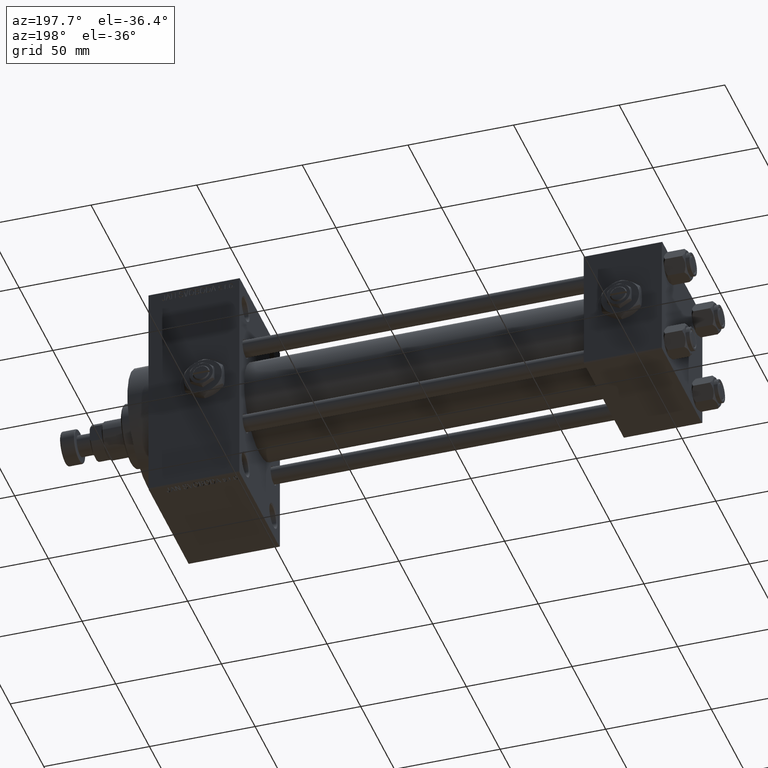
[diagram: clean part render]
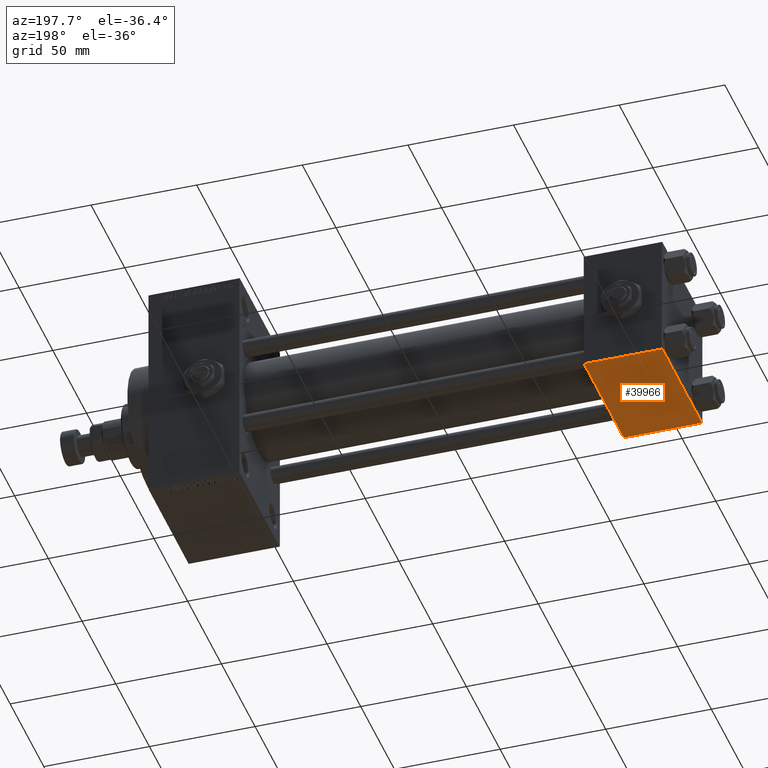
[diagram: same view with one face highlighted and labeled with its STEP entity id]
A machine part, auxiliary view. The second image highlights one B-rep face of the part: STEP entity #39966.
In plain terms, the highlighted planar face has unit normal (0, 0, -1).
Its self-contained STEP definition (entity closure, byte-faithful):
#2209 = CARTESIAN_POINT ( 'NONE',  ( 37.00000000000000000, 29.49999999999997868, -30.00000000000000000 ) ) ;
#9732 = EDGE_CURVE ( 'NONE', #19642, #27849, #33759, .T. ) ;
#11508 = DIRECTION ( 'NONE',  ( 1.000000000000000000, 0.000000000000000000, 0.000000000000000000 ) ) ;
#11756 = CARTESIAN_POINT ( 'NONE',  ( 37.00000000000000000, 29.49999999999997868, -30.00000000000000000 ) ) ;
#12373 = LINE ( 'NONE', #15893, #31885 ) ;
#13869 = DIRECTION ( 'NONE',  ( -1.000000000000000000, 0.000000000000000000, 0.000000000000000000 ) ) ;
#13909 = AXIS2_PLACEMENT_3D ( 'NONE', #14799, #48774, #22334 ) ;
#14018 = EDGE_CURVE ( 'NONE', #19642, #17336, #31128, .T. ) ;
#14799 = CARTESIAN_POINT ( 'NONE',  ( 37.00000000000000000, 29.99999999999999289, -30.00000000000000000 ) ) ;
#14939 = ORIENTED_EDGE ( 'NONE', *, *, #22986, .T. ) ;
#15893 = CARTESIAN_POINT ( 'NONE',  ( 37.00000000000000000, 29.99999999999999289, -30.00000000000000000 ) ) ;
#17336 = VERTEX_POINT ( 'NONE', #2209 ) ;
#18892 = ORIENTED_EDGE ( 'NONE', *, *, #38568, .T. ) ;
#19642 = VERTEX_POINT ( 'NONE', #22687 ) ;
#21877 = VECTOR ( 'NONE', #30739, 1000.000000000000000 ) ;
#22090 = FACE_OUTER_BOUND ( 'NONE', #33065, .T. ) ;
#22162 = VERTEX_POINT ( 'NONE', #32658 ) ;
#22334 = DIRECTION ( 'NONE',  ( 0.000000000000000000, 1.000000000000000000, 1.156482317317871725E-16 ) ) ;
#22687 = CARTESIAN_POINT ( 'NONE',  ( 0.000000000000000000, 29.49999999999997868, -30.00000000000000000 ) ) ;
#22986 = EDGE_CURVE ( 'NONE', #17336, #22162, #12373, .T. ) ;
#25599 = CARTESIAN_POINT ( 'NONE',  ( 0.000000000000000000, -29.50000000000000000, -30.00000000000000711 ) ) ;
#27849 = VERTEX_POINT ( 'NONE', #25599 ) ;
#30739 = DIRECTION ( 'NONE',  ( 0.000000000000000000, -1.000000000000000000, -1.156482317317871725E-16 ) ) ;
#31128 = LINE ( 'NONE', #11756, #47753 ) ;
#31885 = VECTOR ( 'NONE', #34520, 1000.000000000000000 ) ;
#32492 = CARTESIAN_POINT ( 'NONE',  ( 0.000000000000000000, -29.50000000000001066, -30.00000000000000711 ) ) ;
#32658 = CARTESIAN_POINT ( 'NONE',  ( 37.00000000000000000, -29.50000000000000000, -30.00000000000000711 ) ) ;
#33065 = EDGE_LOOP ( 'NONE', ( #34415, #42853, #14939, #18892 ) ) ;
#33759 = LINE ( 'NONE', #49355, #21877 ) ;
#34415 = ORIENTED_EDGE ( 'NONE', *, *, #9732, .F. ) ;
#34520 = DIRECTION ( 'NONE',  ( 0.000000000000000000, -1.000000000000000000, -1.156482317317871725E-16 ) ) ;
#38568 = EDGE_CURVE ( 'NONE', #22162, #27849, #40283, .T. ) ;
#39966 = ADVANCED_FACE ( 'NONE', ( #22090 ), #49016, .T. ) ;
#40283 = LINE ( 'NONE', #32492, #41941 ) ;
#41941 = VECTOR ( 'NONE', #13869, 1000.000000000000000 ) ;
#42853 = ORIENTED_EDGE ( 'NONE', *, *, #14018, .T. ) ;
#47753 = VECTOR ( 'NONE', #11508, 1000.000000000000000 ) ;
#48774 = DIRECTION ( 'NONE',  ( 0.000000000000000000, 1.156482317317871725E-16, -1.000000000000000000 ) ) ;
#49016 = PLANE ( 'NONE',  #13909 ) ;
#49355 = CARTESIAN_POINT ( 'NONE',  ( 0.000000000000000000, 29.99999999999999289, -30.00000000000000000 ) ) ;